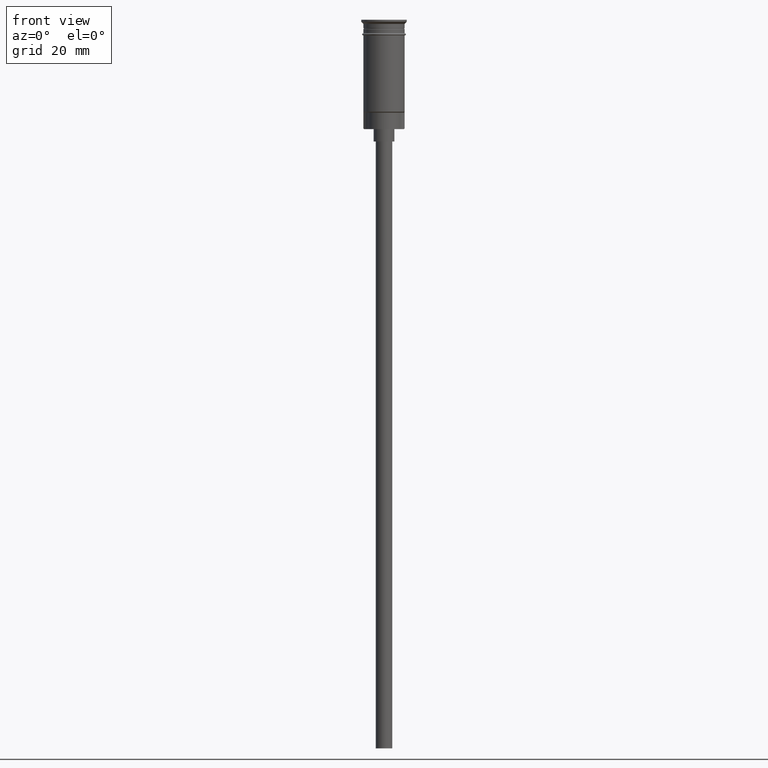
[diagram: clean part render]
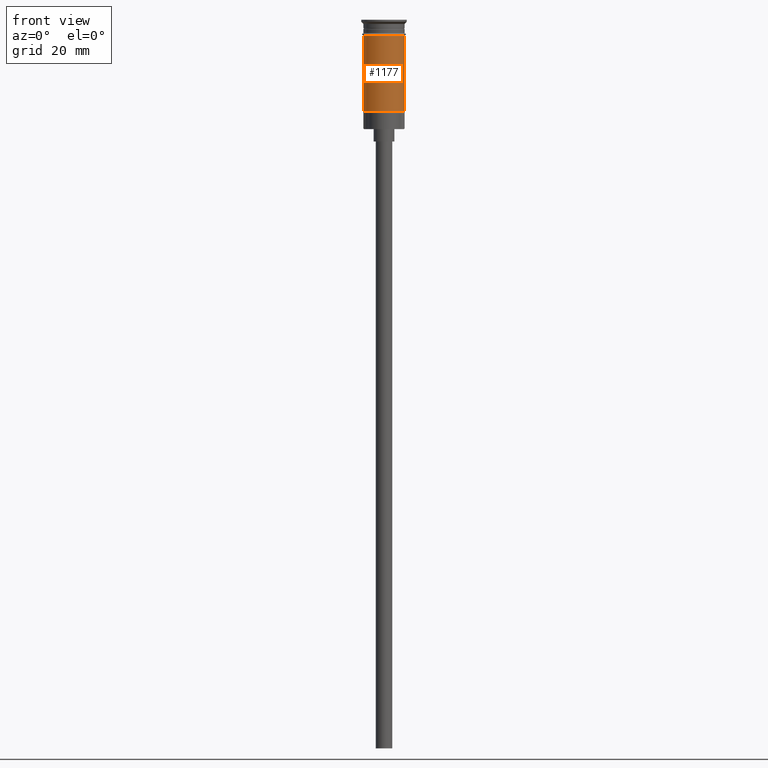
[diagram: same view with one face highlighted and labeled with its STEP entity id]
A machine part, front view. The second image highlights one B-rep face of the part: STEP entity #1177.
In plain terms, the highlighted cylindrical surface (edge-blend (fillet) strip) has radius 5 mm, axis along (-0, -0, 1).
Its self-contained STEP definition (entity closure, byte-faithful):
#43 = ORIENTED_EDGE ( 'NONE', *, *, #900, .F. ) ;
#48 = DIRECTION ( 'NONE',  ( -0.000000000000000000, -0.000000000000000000, 1.000000000000000000 ) ) ;
#78 = EDGE_LOOP ( 'NONE', ( #583, #211, #762, #43 ) ) ;
#92 = VERTEX_POINT ( 'NONE', #1230 ) ;
#121 = DIRECTION ( 'NONE',  ( -0.000000000000000000, -0.000000000000000000, 1.000000000000000000 ) ) ;
#174 = CYLINDRICAL_SURFACE ( 'NONE', #460, 4.999999999999996447 ) ;
#211 = ORIENTED_EDGE ( 'NONE', *, *, #858, .T. ) ;
#219 = CARTESIAN_POINT ( 'NONE',  ( 4.999999999999996447, 6.123233995736761352E-16, -22.30000000000001137 ) ) ;
#231 = CARTESIAN_POINT ( 'NONE',  ( 4.999999999999999112, 0.000000000000000000, -3.799999999999998934 ) ) ;
#287 = LINE ( 'NONE', #795, #989 ) ;
#343 = VECTOR ( 'NONE', #823, 1000.000000000000000 ) ;
#347 = AXIS2_PLACEMENT_3D ( 'NONE', #775, #121, #401 ) ;
#382 = VERTEX_POINT ( 'NONE', #219 ) ;
#401 = DIRECTION ( 'NONE',  ( 1.000000000000000000, 0.000000000000000000, 0.000000000000000000 ) ) ;
#421 = VERTEX_POINT ( 'NONE', #1008 ) ;
#428 = EDGE_CURVE ( 'NONE', #382, #1321, #287, .T. ) ;
#460 = AXIS2_PLACEMENT_3D ( 'NONE', #1415, #48, #545 ) ;
#505 = DIRECTION ( 'NONE',  ( -0.000000000000000000, -0.000000000000000000, 1.000000000000000000 ) ) ;
#545 = DIRECTION ( 'NONE',  ( 1.000000000000000000, 0.000000000000000000, 0.000000000000000000 ) ) ;
#583 = ORIENTED_EDGE ( 'NONE', *, *, #1424, .F. ) ;
#762 = ORIENTED_EDGE ( 'NONE', *, *, #428, .T. ) ;
#775 = CARTESIAN_POINT ( 'NONE',  ( 0.000000000000000000, 0.000000000000000000, -3.799999999999998934 ) ) ;
#795 = CARTESIAN_POINT ( 'NONE',  ( 4.999999999999996447, 0.000000000000000000, 0.000000000000000000 ) ) ;
#802 = FACE_OUTER_BOUND ( 'NONE', #78, .T. ) ;
#805 = CARTESIAN_POINT ( 'NONE',  ( -4.999999999999996447, 6.123233995736762338E-16, 0.000000000000000000 ) ) ;
#823 = DIRECTION ( 'NONE',  ( -0.000000000000000000, -0.000000000000000000, 1.000000000000000000 ) ) ;
#858 = EDGE_CURVE ( 'NONE', #92, #382, #1599, .T. ) ;
#900 = EDGE_CURVE ( 'NONE', #421, #1321, #918, .T. ) ;
#918 = CIRCLE ( 'NONE', #347, 4.999999999999999112 ) ;
#989 = VECTOR ( 'NONE', #505, 1000.000000000000000 ) ;
#991 = AXIS2_PLACEMENT_3D ( 'NONE', #1148, #1030, #1518 ) ;
#1008 = CARTESIAN_POINT ( 'NONE',  ( -4.999999999999999112, 6.123233995736765296E-16, -3.799999999999998934 ) ) ;
#1030 = DIRECTION ( 'NONE',  ( -0.000000000000000000, -0.000000000000000000, 1.000000000000000000 ) ) ;
#1148 = CARTESIAN_POINT ( 'NONE',  ( 0.000000000000000000, 0.000000000000000000, -22.30000000000001137 ) ) ;
#1177 = ADVANCED_FACE ( 'NONE', ( #802 ), #174, .T. ) ;
#1230 = CARTESIAN_POINT ( 'NONE',  ( -4.999999999999993783, 0.000000000000000000, -22.30000000000001137 ) ) ;
#1321 = VERTEX_POINT ( 'NONE', #231 ) ;
#1415 = CARTESIAN_POINT ( 'NONE',  ( 0.000000000000000000, 0.000000000000000000, 0.000000000000000000 ) ) ;
#1424 = EDGE_CURVE ( 'NONE', #92, #421, #1443, .T. ) ;
#1443 = LINE ( 'NONE', #805, #343 ) ;
#1518 = DIRECTION ( 'NONE',  ( -1.000000000000000000, 0.000000000000000000, 0.000000000000000000 ) ) ;
#1599 = CIRCLE ( 'NONE', #991, 4.999999999999996447 ) ;